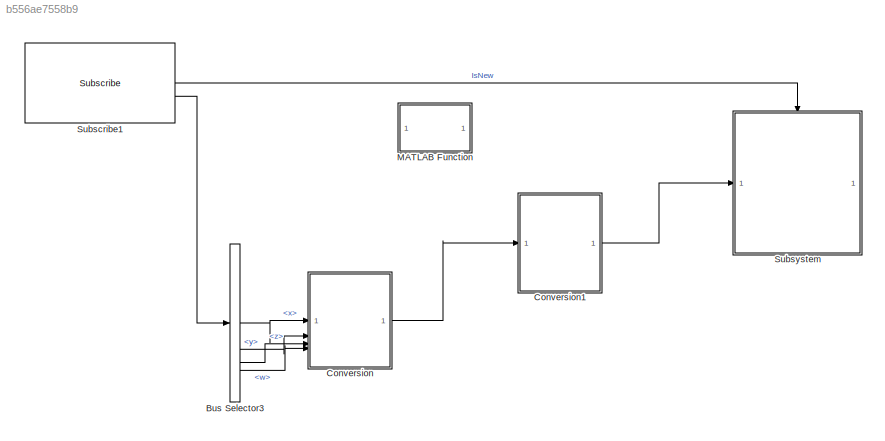
MODEL slx_b556ae7558b9
KIND model
CONFIG AbsTol = auto
CONFIG EnableMultiTasking = off
CONFIG FixedStep = auto
CONFIG MaxStep = auto
CONFIG MinStep = auto
CONFIG RelTol = 1e-3
CONFIG SampleTimeConstraint = Unconstrained
CONFIG SolverName = FixedStepAuto
CONFIG StartTime = 0.0
CONFIG StopTime = inf
BLOCK [BusSelector] Bus Selector3
  OutputSignals = pose.pose.orientation.x,pose.pose.orientation.y,pose.pose.orientation.z,pose.pose.orientation.w
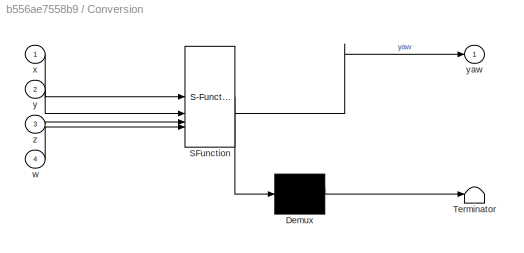
BLOCK [SubSystem] Conversion
  ErrorFcn = Stateflow.Translate.translate
  PermitHierarchicalResolution = ExplicitOnly
  SFBlockType = MATLAB Function
  TreatAsAtomicUnit = on
BLOCK [Demux] Conversion/ Demux 
  Outputs = 1
BLOCK [S-Function] Conversion/ SFunction 
  EnableBusSupport = on
  FunctionName = sf_sfun
  PortCounts = [4 2]
  SFcnIsStateOwnerBlock = off
  SFunctionDeploymentMode = off
  Tag = Stateflow S-Function 1
BLOCK [Terminator] Conversion/ Terminator 
BLOCK [Inport] Conversion/w
  Port = 4
BLOCK [Inport] Conversion/x
BLOCK [Inport] Conversion/y
  Port = 2
BLOCK [Outport] Conversion/yaw
  VectorParamsAs1DForOutWhenUnconnected = off
BLOCK [Inport] Conversion/z
  Port = 3
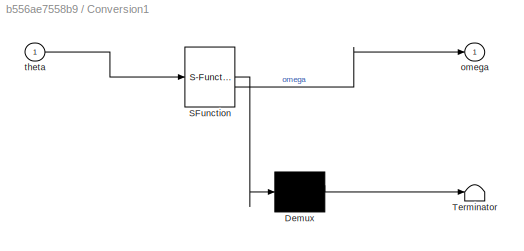
BLOCK [SubSystem] Conversion1
  ErrorFcn = Stateflow.Translate.translate
  PermitHierarchicalResolution = ExplicitOnly
  SFBlockType = MATLAB Function
  TreatAsAtomicUnit = on
BLOCK [Demux] Conversion1/ Demux 
  Outputs = 1
BLOCK [S-Function] Conversion1/ SFunction 
  EnableBusSupport = on
  FunctionName = sf_sfun
  PortCounts = [1 2]
  SFcnIsStateOwnerBlock = off
  SFunctionDeploymentMode = off
  Tag = Stateflow S-Function 2
BLOCK [Terminator] Conversion1/ Terminator 
BLOCK [Outport] Conversion1/omega
  VectorParamsAs1DForOutWhenUnconnected = off
BLOCK [Inport] Conversion1/theta
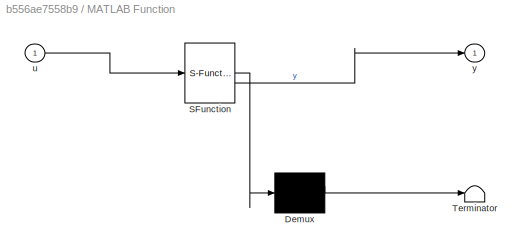
BLOCK [SubSystem] MATLAB Function
  ErrorFcn = Stateflow.Translate.translate
  PermitHierarchicalResolution = ExplicitOnly
  SFBlockType = MATLAB Function
  TreatAsAtomicUnit = on
BLOCK [Demux] MATLAB Function/ Demux 
  Outputs = 1
BLOCK [S-Function] MATLAB Function/ SFunction 
  EnableBusSupport = off
  FunctionName = sf_sfun
  PortCounts = [1 2]
  SFcnIsStateOwnerBlock = off
  SFunctionDeploymentMode = off
  Tag = Stateflow S-Function 3
BLOCK [Terminator] MATLAB Function/ Terminator 
BLOCK [Inport] MATLAB Function/u
BLOCK [Outport] MATLAB Function/y
BLOCK [Reference] Subscribe1  REF=ros2lib/Subscribe  (lib defined in slx_3c1549211f48)
  SourceBlock = ros2lib/Subscribe
  SourceType = ROS2 Subscribe
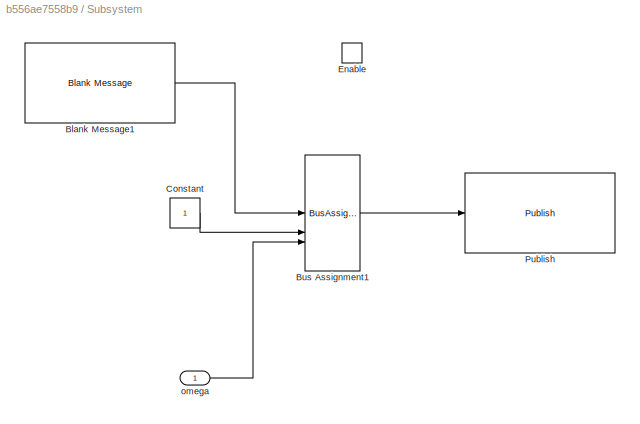
BLOCK [SubSystem] Subsystem
BLOCK [Reference] Subsystem/Blank Message1  REF=ros2lib/Blank Message  (lib defined in slx_3c1549211f48)
  SourceBlock = ros2lib/Blank Message
  SourceType = ROS2 Blank Message
BLOCK [BusAssignment] Subsystem/Bus Assignment1
  AssignedSignals = linear.x,angular.z
  DialogController = Simulink.DDGSource_BusAssignment
BLOCK [Constant] Subsystem/Constant
BLOCK [EnablePort] Subsystem/Enable
BLOCK [Reference] Subsystem/Publish  REF=ros2lib/Publish  (lib defined in slx_3c1549211f48)
  SourceBlock = ros2lib/Publish
  SourceType = ROS2 Publish
BLOCK [Inport] Subsystem/omega
LINE Bus Selector3:1 -> Conversion:1
LINE Bus Selector3:2 -> Conversion:2
LINE Bus Selector3:3 -> Conversion:3
LINE Bus Selector3:4 -> Conversion:4
LINE Conversion1:1 -> Subsystem:1
LINE Conversion:1 -> Conversion1:1
LINE Subscribe1:1 -> Subsystem:enable
LINE Subscribe1:2 -> Bus Selector3:1
LINE Subsystem/Blank Message1:1 -> Subsystem/Bus Assignment1:1
LINE Subsystem/Bus Assignment1:1 -> Subsystem/Publish:1
LINE Subsystem/Constant:1 -> Subsystem/Bus Assignment1:2
LINE Subsystem/omega:1 -> Subsystem/Bus Assignment1:3
CHART Conversion states=1 transitions=1
  STATE_LABEL 'eML_blk_kernel()'
  STATE_LABEL 'SCRIPT:\nfunction yaw  = quat2eul(x,y,z,w)\n%#codegen\n\n% Convert the quaternion to a yaw angle (zyx euler angle)\neul = quat2eul([w,x,y,z]);\nyaw = eul(1);\n\nend\n\n'
CHART Conversion1 states=1 transitions=1
  STATE_LABEL 'eML_blk_kernel()'
  STATE_LABEL 'SCRIPT:\nfunction omega = fcn(theta)\n% Inputs: theta (current value)\n% Outputs: omega (control signal)\npersistent direction;\nif isempty(direction)\n    direction = 1; % Initial direction: increasing\nend\n\nif theta >= pi\n    omega = -0.5;   % Start decreasing theta\n    direction = -1; % Change direction to decreasing\nelseif theta <= -pi\n    omega = 0.5;    % Start increasing theta\n    direction = 1;  ...<+105ch>'
CHART MATLAB Function states=1 transitions=1
  STATE_LABEL 'eML_blk_kernel()'
  STATE_LABEL 'SCRIPT:\nfunction y = fcn(u)\n\ny = u;\n'
CHART  states=0 transitions=0
CHART  states=0 transitions=0
CHART  states=0 transitions=0
